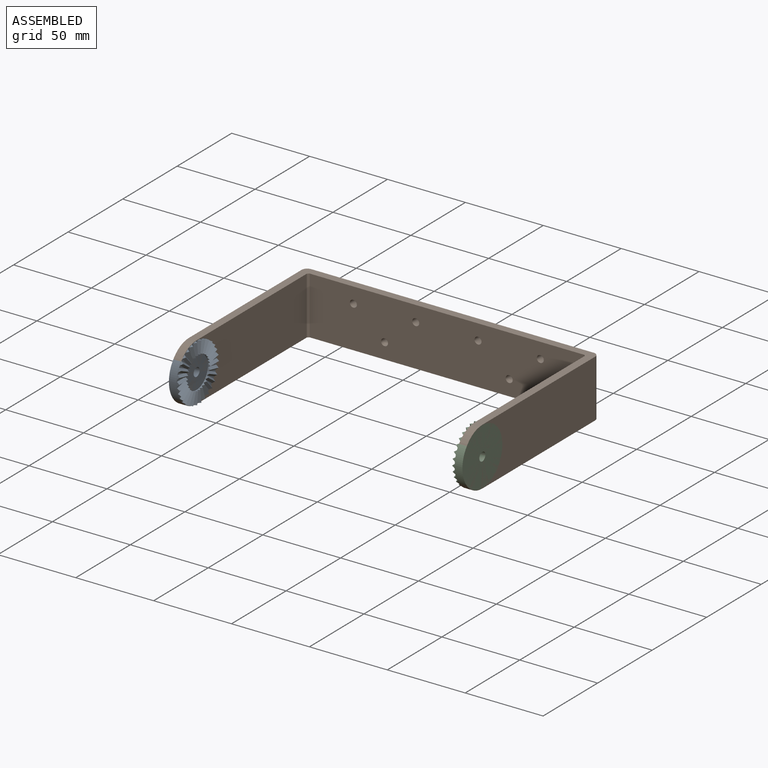
[diagram: assembled view]
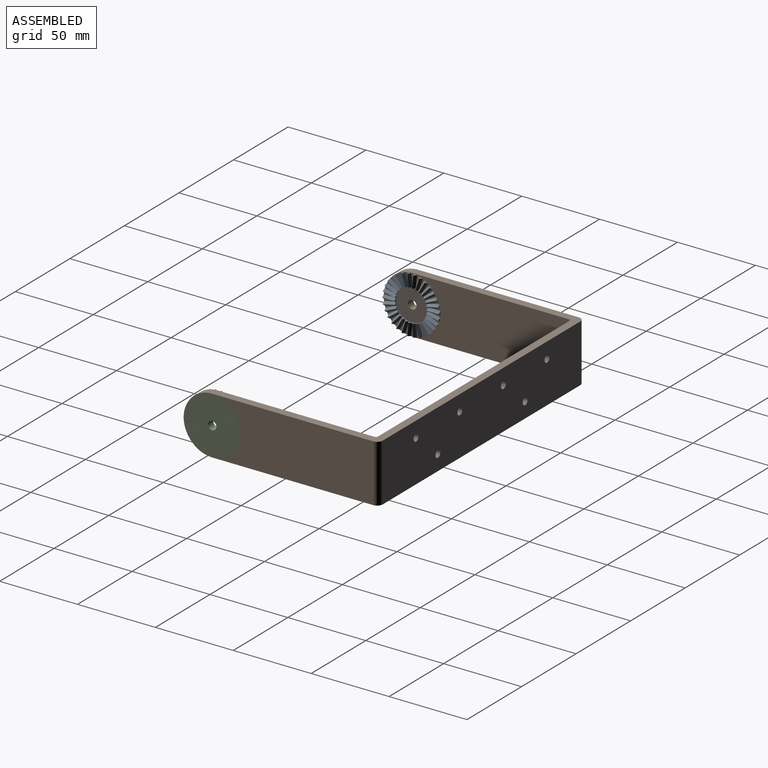
[diagram: assembled view, second angle]
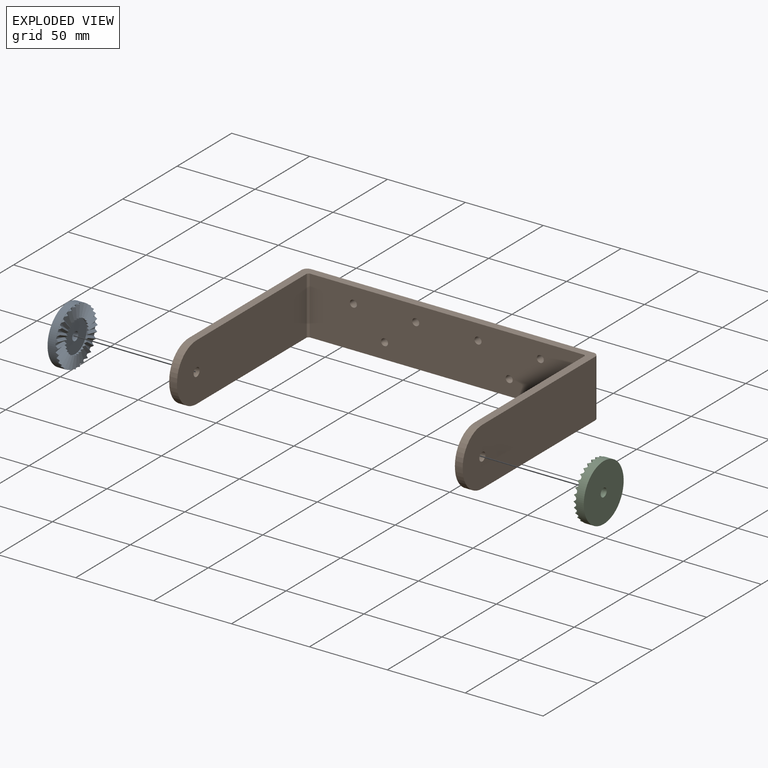
[diagram: exploded view]
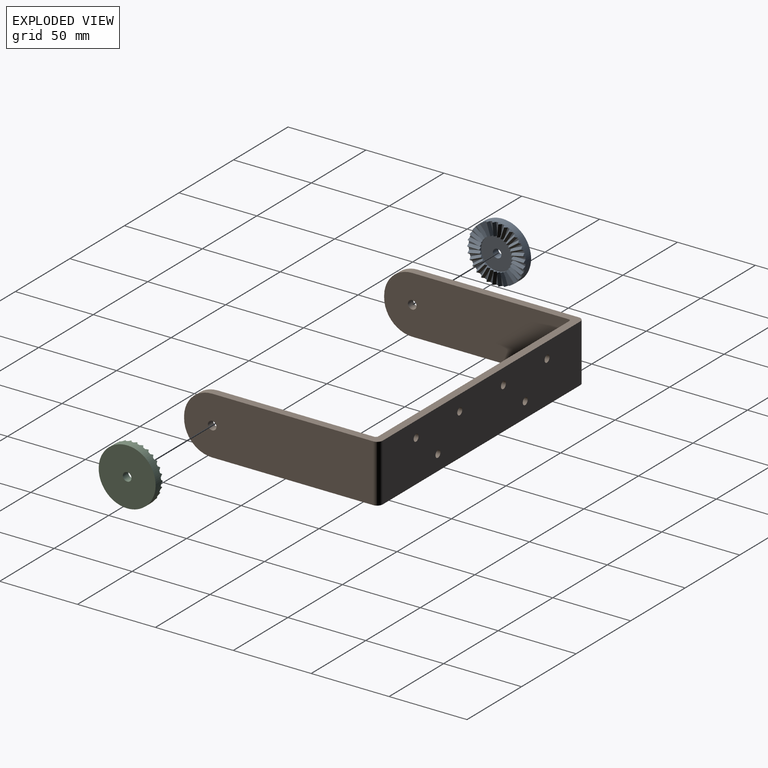
[diagram: exploded view, second angle]
ASSEMBLY  parts=3 mates=2
PART A: 154 faces, bbox 36.5x36.6x6.7 mm
  f0: cylinder r=18mm len=5mm, axis (0,0,-1), area 19.1mm2, adj f4,f7,f8,f152
  f1: plane 7.9x1.7mm, normal (-0.81,0,0.59), area 16.4mm2, adj f2,f5,f6,f9,f152
  f2: plane 7.9x1.7mm, normal (0.81,0,0.59), area 16.4mm2, adj f1,f5,f6,f10,f152
  f3: plane 20.67x20.55mm, normal (0,0,1), area 309.2mm2, adj f6,f13,f18,f23,f28,f33,f38,f43
  f4: plane 36.55x36.55mm, normal (0,0,-1), area 1025.5mm2, adj f0,f7,f8,f14,f19,f24,f29,f34
  f5: plane 2.5x1.7mm, normal (0,1,0), area 2.1mm2, adj f1,f2,f152
  f6: plane 2.16x1.7mm, normal (0,-1,0), area 2.1mm2, adj f1,f2,f3,f13,f148
  f7: cylinder r=18mm len=5mm, axis (0,0,-1), area 19.1mm2, adj f0,f4,f14,f152
  f8: cylinder r=18mm len=5mm, axis (0,0,-1), area 19.1mm2, adj f0,f4,f151,f152
  f9: plane 7.99x2.7mm, normal (0.79,0.17,0.59), area 16.4mm2, adj f1,f11,f12,f13,f152
  f10: plane 7.99x2.7mm, normal (-0.79,0.17,0.59), area 16.4mm2, adj f2,f144,f145,f148,f152
  f11: plane 7.95x2.87mm, normal (-0.79,-0.17,0.59), area 16.4mm2, adj f9,f12,f13,f15,f152
  f12: plane 2.45x1.7mm, normal (-0.21,0.98,0), area 2.1mm2, adj f9,f11,f152
  f13: plane 2.11x1.7mm, normal (0.21,-0.98,0), area 2.1mm2, adj f3,f6,f9,f11,f18
  f14: cylinder r=18mm len=5mm, axis (0,0,-1), area 19.1mm2, adj f4,f7,f19,f152
  f15: plane 7.73x4.2mm, normal (0.74,0.33,0.59), area 16.4mm2, adj f11,f16,f17,f18,f152
  f16: plane 7.66x4.36mm, normal (-0.74,-0.33,0.59), area 16.4mm2, adj f15,f17,f18,f20,f152
  f17: plane 2.28x1.7mm, normal (-0.41,0.91,0), area 2.1mm2, adj f15,f16,f152
  f18: plane 1.97x1.7mm, normal (0.41,-0.91,0), area 2.1mm2, adj f3,f13,f15,f16,f23
  f19: cylinder r=18mm len=5mm, axis (0,0,-1), area 19.1mm2, adj f4,f14,f24,f152
  f20: plane 7.13x5.52mm, normal (0.65,0.47,0.59), area 16.4mm2, adj f16,f21,f22,f23,f152
  f21: plane 7.03x5.65mm, normal (-0.65,-0.47,0.59), area 16.4mm2, adj f20,f22,f23,f25,f152
  f22: plane 2.02x1.7mm, normal (-0.59,0.81,0), area 2.1mm2, adj f20,f21,f152
  f23: plane 1.75x1.7mm, normal (0.59,-0.81,0), area 2.1mm2, adj f3,f18,f20,f21,f28
  f24: cylinder r=18mm len=5mm, axis (0,0,-1), area 19.1mm2, adj f4,f19,f29,f152
  f25: plane 6.59x6.22mm, normal (0.54,0.6,0.59), area 16.4mm2, adj f21,f26,f27,f28,f152
  f26: plane 6.71x6.09mm, normal (-0.54,-0.6,0.59), area 16.4mm2, adj f25,f27,f28,f30,f152
  f27: plane 1.86x1.7mm, normal (-0.74,0.67,0), area 2.1mm2, adj f25,f26,f152
  f28: plane 1.7x1.61mm, normal (0.74,-0.67,0), area 2.1mm2, adj f3,f23,f25,f26,f33
  f29: cylinder r=18mm len=5mm, axis (0,0,-1), area 19.1mm2, adj f4,f24,f34,f152
  f30: plane 7.38x5.03mm, normal (0.4,0.7,0.59), area 16.4mm2, adj f26,f31,f32,f33,f152
  f31: plane 7.47x4.89mm, normal (-0.4,-0.7,0.59), area 16.4mm2, adj f30,f32,f33,f35,f152
  f32: plane 2.17x1.7mm, normal (-0.87,0.5,0), area 2.1mm2, adj f30,f31,f152
  f33: plane 1.87x1.7mm, normal (0.87,-0.5,0), area 2.1mm2, adj f3,f28,f30,f31,f38
  f34: cylinder r=18mm len=5mm, axis (0,0,-1), area 19.1mm2, adj f4,f29,f39,f152
  f35: plane 7.85x3.63mm, normal (0.25,0.77,0.59), area 16.4mm2, adj f31,f36,f37,f38,f152
  f36: plane 7.9x3.47mm, normal (-0.25,-0.77,0.59), area 16.4mm2, adj f35,f37,f38,f40,f152
  f37: plane 2.38x1.7mm, normal (-0.95,0.31,0), area 2.1mm2, adj f35,f36,f152
  f38: plane 2.05x1.7mm, normal (0.95,-0.31,0), area 2.1mm2, adj f3,f33,f35,f36,f43
  f39: cylinder r=18mm len=5mm, axis (0,0,-1), area 19.1mm2, adj f4,f34,f44,f152
  f40: plane 7.97x2.07mm, normal (0.08,0.8,0.59), area 16.4mm2, adj f36,f41,f42,f43,f152
  f41: plane 7.99x1.9mm, normal (-0.08,-0.8,0.59), area 16.4mm2, adj f40,f42,f43,f45,f152
  f42: plane 2.49x1.7mm, normal (-0.99,0.1,0), area 2.1mm2, adj f40,f41,f152
  f43: plane 2.15x1.7mm, normal (0.99,-0.1,0), area 2.1mm2, adj f3,f38,f40,f41,f48
  f44: cylinder r=18mm len=5mm, axis (0,0,-1), area 19.1mm2, adj f4,f39,f49,f152
  f45: plane 7.99x1.9mm, normal (-0.08,0.8,0.59), area 16.4mm2, adj f41,f46,f47,f48,f152
  f46: plane 7.97x2.07mm, normal (0.08,-0.8,0.59), area 16.4mm2, adj f45,f47,f48,f50,f152
  f47: plane 2.49x1.7mm, normal (-0.99,-0.1,0), area 2.1mm2, adj f45,f46,f152
  f48: plane 2.15x1.7mm, normal (0.99,0.1,0), area 2.1mm2, adj f3,f43,f45,f46,f53
  f49: cylinder r=18mm len=5mm, axis (0,0,-1), area 19.1mm2, adj f4,f44,f54,f152
  f50: plane 7.9x3.47mm, normal (-0.25,0.77,0.59), area 16.4mm2, adj f46,f51,f52,f53,f152
  f51: plane 7.85x3.63mm, normal (0.25,-0.77,0.59), area 16.4mm2, adj f50,f52,f53,f55,f152
  f52: plane 2.38x1.7mm, normal (-0.95,-0.31,0), area 2.1mm2, adj f50,f51,f152
  f53: plane 2.05x1.7mm, normal (0.95,0.31,0), area 2.1mm2, adj f3,f48,f50,f51,f58
  f54: cylinder r=18mm len=5mm, axis (0,0,-1), area 19.1mm2, adj f4,f49,f59,f152
  f55: plane 7.47x4.89mm, normal (-0.4,0.7,0.59), area 16.4mm2, adj f51,f56,f57,f58,f152
  f56: plane 7.38x5.03mm, normal (0.4,-0.7,0.59), area 16.4mm2, adj f55,f57,f58,f60,f152
  f57: plane 2.17x1.7mm, normal (-0.87,-0.5,0), area 2.1mm2, adj f55,f56,f152
  f58: plane 1.87x1.7mm, normal (0.87,0.5,0), area 2.1mm2, adj f3,f53,f55,f56,f63
  f59: cylinder r=18mm len=5mm, axis (0,0,-1), area 19.1mm2, adj f4,f54,f64,f152
  f60: plane 6.71x6.09mm, normal (-0.54,0.6,0.59), area 16.4mm2, adj f56,f61,f62,f63,f152
  f61: plane 6.59x6.22mm, normal (0.54,-0.6,0.59), area 16.4mm2, adj f60,f62,f63,f65,f152
  f62: plane 1.86x1.7mm, normal (-0.74,-0.67,0), area 2.1mm2, adj f60,f61,f152
  f63: plane 1.7x1.61mm, normal (0.74,0.67,0), area 2.1mm2, adj f3,f58,f60,f61,f68
  f64: cylinder r=18mm len=5mm, axis (0,0,-1), area 19.1mm2, adj f4,f59,f69,f152
  f65: plane 7.03x5.65mm, normal (-0.65,0.47,0.59), area 16.4mm2, adj f61,f66,f67,f68,f152
  f66: plane 7.13x5.52mm, normal (0.65,-0.47,0.59), area 16.4mm2, adj f65,f67,f68,f70,f152
  f67: plane 2.02x1.7mm, normal (-0.59,-0.81,0), area 2.1mm2, adj f65,f66,f152
  f68: plane 1.75x1.7mm, normal (0.59,0.81,0), area 2.1mm2, adj f3,f63,f65,f66,f73
  f69: cylinder r=18mm len=5mm, axis (0,0,-1), area 19.1mm2, adj f4,f64,f74,f152
  f70: plane 7.66x4.36mm, normal (-0.74,0.33,0.59), area 16.4mm2, adj f66,f71,f72,f73,f152
  f71: plane 7.73x4.2mm, normal (0.74,-0.33,0.59), area 16.4mm2, adj f70,f72,f73,f75,f152
  f72: plane 2.28x1.7mm, normal (-0.41,-0.91,0), area 2.1mm2, adj f70,f71,f152
  f73: plane 1.97x1.7mm, normal (0.41,0.91,0), area 2.1mm2, adj f3,f68,f70,f71,f78
  f74: cylinder r=18mm len=5mm, axis (0,0,-1), area 19.1mm2, adj f4,f69,f79,f152
  f75: plane 7.95x2.87mm, normal (-0.79,0.17,0.59), area 16.4mm2, adj f71,f76,f77,f78,f152
  f76: plane 7.99x2.7mm, normal (0.79,-0.17,0.59), area 16.4mm2, adj f75,f77,f78,f80,f152
  f77: plane 2.45x1.7mm, normal (-0.21,-0.98,0), area 2.1mm2, adj f75,f76,f152
  f78: plane 2.11x1.7mm, normal (0.21,0.98,0), area 2.1mm2, adj f3,f73,f75,f76,f83
  f79: cylinder r=18mm len=5mm, axis (0,0,-1), area 19.1mm2, adj f4,f74,f84,f152
  f80: plane 7.9x1.7mm, normal (-0.81,0,0.59), area 16.4mm2, adj f76,f81,f82,f83,f152
  f81: plane 7.9x1.7mm, normal (0.81,0,0.59), area 16.4mm2, adj f80,f82,f83,f85,f152
  f82: plane 2.5x1.7mm, normal (0,-1,0), area 2.1mm2, adj f80,f81,f152
  f83: plane 2.16x1.7mm, normal (0,1,0), area 2.1mm2, adj f3,f78,f80,f81,f88
  f84: cylinder r=18mm len=5mm, axis (0,0,-1), area 19.1mm2, adj f4,f79,f89,f152
  f85: plane 7.99x2.7mm, normal (-0.79,-0.17,0.59), area 16.4mm2, adj f81,f86,f87,f88,f152
  f86: plane 7.95x2.87mm, normal (0.79,0.17,0.59), area 16.4mm2, adj f85,f87,f88,f90,f152
  f87: plane 2.45x1.7mm, normal (0.21,-0.98,0), area 2.1mm2, adj f85,f86,f152
  f88: plane 2.11x1.7mm, normal (-0.21,0.98,0), area 2.1mm2, adj f3,f83,f85,f86,f93
  f89: cylinder r=18mm len=5mm, axis (0,0,-1), area 19.1mm2, adj f4,f84,f94,f152
  f90: plane 7.73x4.2mm, normal (-0.74,-0.33,0.59), area 16.4mm2, adj f86,f91,f92,f93,f152
  f91: plane 7.66x4.36mm, normal (0.74,0.33,0.59), area 16.4mm2, adj f90,f92,f93,f95,f152
  f92: plane 2.28x1.7mm, normal (0.41,-0.91,0), area 2.1mm2, adj f90,f91,f152
  f93: plane 1.97x1.7mm, normal (-0.41,0.91,0), area 2.1mm2, adj f3,f88,f90,f91,f98
  f94: cylinder r=18mm len=5mm, axis (0,0,-1), area 19.1mm2, adj f4,f89,f99,f152
  f95: plane 7.13x5.52mm, normal (-0.65,-0.47,0.59), area 16.4mm2, adj f91,f96,f97,f98,f152
  f96: plane 7.03x5.65mm, normal (0.65,0.47,0.59), area 16.4mm2, adj f95,f97,f98,f100,f152
  f97: plane 2.02x1.7mm, normal (0.59,-0.81,0), area 2.1mm2, adj f95,f96,f152
  f98: plane 1.75x1.7mm, normal (-0.59,0.81,0), area 2.1mm2, adj f3,f93,f95,f96,f103
  f99: cylinder r=18mm len=5mm, axis (0,0,-1), area 19.1mm2, adj f4,f94,f104,f152
  f100: plane 6.59x6.22mm, normal (-0.54,-0.6,0.59), area 16.4mm2, adj f96,f101,f102,f103,f152
  f101: plane 6.71x6.09mm, normal (0.54,0.6,0.59), area 16.4mm2, adj f100,f102,f103,f105,f152
  f102: plane 1.86x1.7mm, normal (0.74,-0.67,0), area 2.1mm2, adj f100,f101,f152
  f103: plane 1.7x1.61mm, normal (-0.74,0.67,0), area 2.1mm2, adj f3,f98,f100,f101,f108
  f104: cylinder r=18mm len=5mm, axis (0,0,-1), area 19.1mm2, adj f4,f99,f109,f152
  f105: plane 7.38x5.03mm, normal (-0.4,-0.7,0.59), area 16.4mm2, adj f101,f106,f107,f108,f152
  f106: plane 7.47x4.89mm, normal (0.4,0.7,0.59), area 16.4mm2, adj f105,f107,f108,f110,f152
  f107: plane 2.17x1.7mm, normal (0.87,-0.5,0), area 2.1mm2, adj f105,f106,f152
  f108: plane 1.87x1.7mm, normal (-0.87,0.5,0), area 2.1mm2, adj f3,f103,f105,f106,f113
  f109: cylinder r=18mm len=5mm, axis (0,0,-1), area 19.1mm2, adj f4,f104,f114,f152
  f110: plane 7.85x3.63mm, normal (-0.25,-0.77,0.59), area 16.4mm2, adj f106,f111,f112,f113,f152
  f111: plane 7.9x3.47mm, normal (0.25,0.77,0.59), area 16.4mm2, adj f110,f112,f113,f115,f152
  f112: plane 2.38x1.7mm, normal (0.95,-0.31,0), area 2.1mm2, adj f110,f111,f152
  f113: plane 2.05x1.7mm, normal (-0.95,0.31,0), area 2.1mm2, adj f3,f108,f110,f111,f118
  f114: cylinder r=18mm len=5mm, axis (0,0,-1), area 19.1mm2, adj f4,f109,f119,f152
  f115: plane 7.97x2.07mm, normal (-0.08,-0.8,0.59), area 16.4mm2, adj f111,f116,f117,f118,f152
  f116: plane 7.99x1.9mm, normal (0.08,0.8,0.59), area 16.4mm2, adj f115,f117,f118,f120,f152
  f117: plane 2.49x1.7mm, normal (0.99,-0.1,0), area 2.1mm2, adj f115,f116,f152
  f118: plane 2.15x1.7mm, normal (-0.99,0.1,0), area 2.1mm2, adj f3,f113,f115,f116,f123
  f119: cylinder r=18mm len=5mm, axis (0,0,-1), area 19.1mm2, adj f4,f114,f124,f152
  f120: plane 7.99x1.9mm, normal (0.08,-0.8,0.59), area 16.4mm2, adj f116,f121,f122,f123,f152
  f121: plane 7.97x2.07mm, normal (-0.08,0.8,0.59), area 16.4mm2, adj f120,f122,f123,f125,f152
  f122: plane 2.49x1.7mm, normal (0.99,0.1,0), area 2.1mm2, adj f120,f121,f152
  f123: plane 2.15x1.7mm, normal (-0.99,-0.1,0), area 2.1mm2, adj f3,f118,f120,f121,f128
  f124: cylinder r=18mm len=5mm, axis (0,0,-1), area 19.1mm2, adj f4,f119,f129,f152
  f125: plane 7.9x3.47mm, normal (0.25,-0.77,0.59), area 16.4mm2, adj f121,f126,f127,f128,f152
  f126: plane 7.85x3.63mm, normal (-0.25,0.77,0.59), area 16.4mm2, adj f125,f127,f128,f130,f152
  f127: plane 2.38x1.7mm, normal (0.95,0.31,0), area 2.1mm2, adj f125,f126,f152
  f128: plane 2.05x1.7mm, normal (-0.95,-0.31,0), area 2.1mm2, adj f3,f123,f125,f126,f133
  f129: cylinder r=18mm len=5mm, axis (0,0,-1), area 19.1mm2, adj f4,f124,f134,f152
  f130: plane 7.47x4.89mm, normal (0.4,-0.7,0.59), area 16.4mm2, adj f126,f131,f132,f133,f152
  f131: plane 7.38x5.03mm, normal (-0.4,0.7,0.59), area 16.4mm2, adj f130,f132,f133,f135,f152
  f132: plane 2.17x1.7mm, normal (0.87,0.5,0), area 2.1mm2, adj f130,f131,f152
  f133: plane 1.87x1.7mm, normal (-0.87,-0.5,0), area 2.1mm2, adj f3,f128,f130,f131,f138
  f134: cylinder r=18mm len=5mm, axis (0,0,-1), area 19.1mm2, adj f4,f129,f139,f152
  f135: plane 6.71x6.09mm, normal (0.54,-0.6,0.59), area 16.4mm2, adj f131,f136,f137,f138,f152
  f136: plane 6.59x6.22mm, normal (-0.54,0.6,0.59), area 16.4mm2, adj f135,f137,f138,f140,f152
  f137: plane 1.86x1.7mm, normal (0.74,0.67,0), area 2.1mm2, adj f135,f136,f152
  f138: plane 1.7x1.61mm, normal (-0.74,-0.67,0), area 2.1mm2, adj f3,f133,f135,f136,f143
  f139: cylinder r=18mm len=5mm, axis (0,0,-1), area 19.1mm2, adj f4,f134,f151,f152
  f140: plane 7.03x5.65mm, normal (0.65,-0.47,0.59), area 16.4mm2, adj f136,f141,f142,f143,f152
  f141: plane 7.13x5.52mm, normal (-0.65,0.47,0.59), area 16.4mm2, adj f140,f142,f143,f147,f152
  f142: plane 2.02x1.7mm, normal (0.59,0.81,0), area 2.1mm2, adj f140,f141,f152
  f143: plane 1.75x1.7mm, normal (-0.59,-0.81,0), area 2.1mm2, adj f3,f138,f140,f141,f146
  f144: plane 2.45x1.7mm, normal (0.21,0.98,0), area 2.1mm2, adj f10,f145,f152
  f145: plane 7.95x2.87mm, normal (0.79,-0.17,0.59), area 16.4mm2, adj f10,f144,f148,f150,f152
  f146: plane 1.97x1.7mm, normal (-0.41,-0.91,0), area 2.1mm2, adj f3,f143,f147,f148,f150
  f147: plane 7.66x4.36mm, normal (0.74,-0.33,0.59), area 16.4mm2, adj f141,f146,f149,f150,f152
  f148: plane 2.11x1.7mm, normal (-0.21,-0.98,0), area 2.1mm2, adj f3,f6,f10,f145,f146
  f149: plane 2.28x1.7mm, normal (0.41,0.91,0), area 2.1mm2, adj f147,f150,f152
  f150: plane 7.73x4.2mm, normal (-0.74,0.33,0.59), area 16.4mm2, adj f145,f146,f147,f149,f152
  f151: cylinder r=18mm len=5mm, axis (0,0,-1), area 19.1mm2, adj f4,f8,f139,f152
  f152: plane 36.55x36.55mm, normal (0,0,1), area 132.1mm2, adj f0,f1,f2,f5,f7,f8,f9,f10
  f153: cylinder r=2.75mm len=5.5mm, axis (0,0,1), area 86.4mm2, adj f3,f4
PART B: 26 faces, bbox 188.4x125x37 mm
  f0: plane 118.92x37mm, normal (-1,0,0), area 4237mm2, adj f1,f6,f7,f8,f12,f13,f14
  f1: plane 5x1mm, normal (0,-1,0), area 5mm2, adj f0,f2,f12,f13
  f2: plane 121.38x37mm, normal (1,0,0), area 4328.3mm2, adj f1,f3,f7,f8,f12,f13,f14
  f3: cylinder r=3.62mm len=37mm, axis (0,0,-1), area 210.3mm2, adj f2,f4,f7,f8
  f4: plane 181.16x37mm, normal (0,1,0), area 6607.7mm2, adj f3,f7,f8,f9,f10,f11,f18,f20
  f5: plane 176.23x37mm, normal (0,-1,0), area 6425.1mm2, adj f6,f7,f8,f9,f10,f11,f19,f20
  f6: cylinder r=3.62mm len=37mm, axis (0,0,-1), area 57.2mm2, adj f0,f5,f7,f8
  f7: plane 188.4x107mm, normal (0,0,1), area 1957.4mm2, adj f0,f2,f3,f4,f5,f6,f13,f15
  f8: plane 188.4x107mm, normal (0,0,-1), area 1957.4mm2, adj f0,f2,f3,f4,f5,f6,f12,f15
  f9: cylinder r=2.25mm len=5mm, axis (0,-1,0), area 70.7mm2, adj f4,f5
  f10: cylinder r=2.25mm len=5mm, axis (0,-1,0), area 70.7mm2, adj f4,f5
  f11: cylinder r=2.25mm len=5mm, axis (0,-1,0), area 70.7mm2, adj f4,f5
  f12: cylinder r=18mm len=18mm, axis (1,0,0), area 141.4mm2, adj f0,f1,f2,f8
  f13: cylinder r=18mm len=18mm, axis (-1,0,0), area 141.4mm2, adj f0,f1,f2,f7
  f14: cylinder r=2.75mm len=5.5mm, axis (-1,0,0), area 86.4mm2, adj f0,f2
  f15: plane 118.92x37mm, normal (1,0,0), area 4237mm2, adj f7,f8,f16,f19,f23,f24,f25
  f16: plane 5x1mm, normal (0,-1,0), area 5mm2, adj f15,f17,f23,f24
  f17: plane 121.38x37mm, normal (-1,0,0), area 4328.3mm2, adj f7,f8,f16,f18,f23,f24,f25
  f18: cylinder r=3.62mm len=37mm, axis (0,0,-1), area 210.3mm2, adj f4,f7,f8,f17
  f19: cylinder r=3.62mm len=37mm, axis (0,0,-1), area 57.2mm2, adj f5,f7,f8,f15
  f20: cylinder r=2.25mm len=5mm, axis (0,-1,0), area 70.7mm2, adj f4,f5
  f21: cylinder r=2.25mm len=5mm, axis (0,-1,0), area 70.7mm2, adj f4,f5
  f22: cylinder r=2.25mm len=5mm, axis (0,-1,0), area 70.7mm2, adj f4,f5
  f23: cylinder r=18mm len=18mm, axis (-1,0,0), area 141.4mm2, adj f8,f15,f16,f17
  f24: cylinder r=18mm len=18mm, axis (1,0,0), area 141.4mm2, adj f7,f15,f16,f17
  f25: cylinder r=2.75mm len=5.5mm, axis (1,0,0), area 86.4mm2, adj f15,f17
PART C: same geometry as A
PLACE A rot(axis=(0,1,0),90deg) t=(-72.63,-42.29,17.56)mm
PLACE B t=(21.57,14.43,-0.94)mm
PLACE C rot(axis=(0,-1,0),90deg) t=(115.77,-42.29,17.56)mm
MATE pin_slot C.f153 <-> B.f14  axis (1,0,0) through (115.77,-42.57,17.56)mm
MATE pin_slot B.f14 <-> A.f153  axis (1,0,0) through (-67.63,-42.57,17.56)mm
